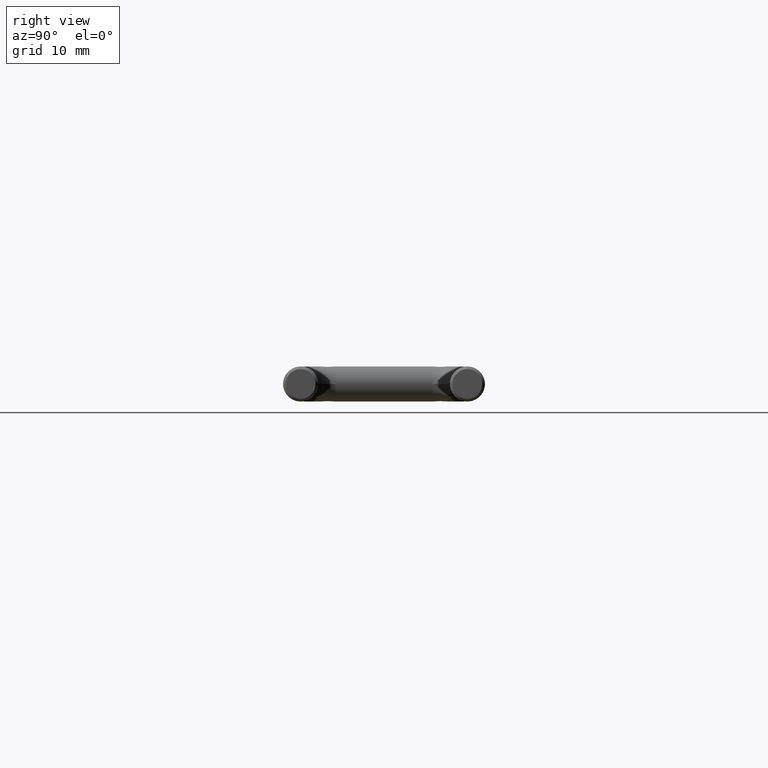
[diagram: clean part render]
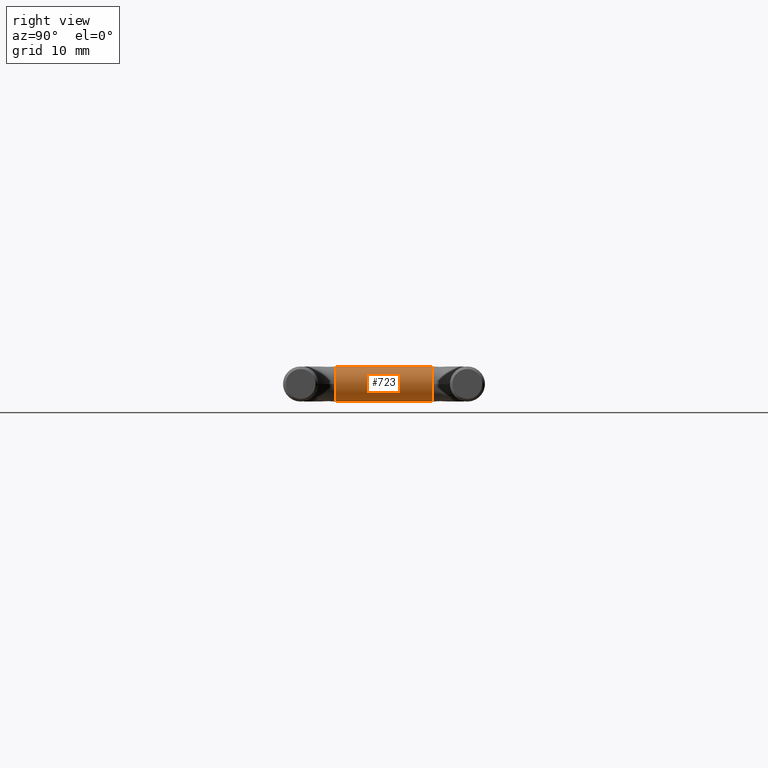
[diagram: same view with one face highlighted and labeled with its STEP entity id]
A machine part, right view. The second image highlights one B-rep face of the part: STEP entity #723.
In plain terms, the highlighted cylindrical surface (edge-blend (fillet) strip) has radius 2 mm, axis along (-0, -1, -0).
Its self-contained STEP definition (entity closure, byte-faithful):
#28 = VERTEX_POINT ( 'NONE', #484 ) ;
#29 = CARTESIAN_POINT ( 'NONE',  ( 0.0000000000000000000, 4.000000000000000000, -2.000000000000004900 ) ) ;
#67 = CARTESIAN_POINT ( 'NONE',  ( 2.449293598294709900E-016, 15.00000000000000000, 2.000000000000000000 ) ) ;
#70 = CARTESIAN_POINT ( 'NONE',  ( 2.449293598294706400E-016, 15.00000000000000000, 2.000000000000000000 ) ) ;
#100 = CARTESIAN_POINT ( 'NONE',  ( 2.449293598294706400E-016, 4.000000000000000000, 1.999999999999995300 ) ) ;
#101 = CIRCLE ( 'NONE', #581, 2.000000000000000000 ) ;
#104 = CARTESIAN_POINT ( 'NONE',  ( 2.000000000198167300, 15.00000000000000000, 1.116728850648756700E-009 ) ) ;
#123 = VERTEX_POINT ( 'NONE', #29 ) ;
#154 = ORIENTED_EDGE ( 'NONE', *, *, #412, .F. ) ;
#159 = CARTESIAN_POINT ( 'NONE',  ( 0.0000000000000000000, 15.00000000000000000, -2.000000000000000000 ) ) ;
#169 = DIRECTION ( 'NONE',  ( 0.0000000000000000000, 0.0000000000000000000, -1.000000000000000000 ) ) ;
#180 = DIRECTION ( 'NONE',  ( -0.0000000000000000000, -1.000000000000000000, -4.336808689942017700E-016 ) ) ;
#212 = ORIENTED_EDGE ( 'NONE', *, *, #629, .F. ) ;
#214 = AXIS2_PLACEMENT_3D ( 'NONE', #456, #744, #169 ) ;
#258 = EDGE_CURVE ( 'NONE', #781, #325, #260, .T. ) ;
#260 = LINE ( 'NONE', #70, #638 ) ;
#301 = AXIS2_PLACEMENT_3D ( 'NONE', #497, #494, #490 ) ;
#303 = EDGE_LOOP ( 'NONE', ( #684, #685, #317, #318, #212, #154 ) ) ;
#310 = EDGE_CURVE ( 'NONE', #781, #662, #786, .T. ) ;
#317 = ORIENTED_EDGE ( 'NONE', *, *, #376, .F. ) ;
#318 = ORIENTED_EDGE ( 'NONE', *, *, #390, .F. ) ;
#320 = DIRECTION ( 'NONE',  ( 1.000000000000000000, 0.0000000000000000000, 0.0000000000000000000 ) ) ;
#322 = DIRECTION ( 'NONE',  ( 0.0000000000000000000, -1.000000000000000000, 0.0000000000000000000 ) ) ;
#324 = CARTESIAN_POINT ( 'NONE',  ( 0.0000000000000000000, 4.000000000000000000, 0.0000000000000000000 ) ) ;
#325 = VERTEX_POINT ( 'NONE', #100 ) ;
#360 = DIRECTION ( 'NONE',  ( 1.000000000000000000, 0.0000000000000000000, 0.0000000000000000000 ) ) ;
#367 = DIRECTION ( 'NONE',  ( 0.0000000000000000000, -1.000000000000000000, 0.0000000000000000000 ) ) ;
#369 = CARTESIAN_POINT ( 'NONE',  ( 0.0000000000000000000, 4.000000000000000000, 0.0000000000000000000 ) ) ;
#376 = EDGE_CURVE ( 'NONE', #438, #325, #623, .T. ) ;
#390 = EDGE_CURVE ( 'NONE', #123, #438, #101, .T. ) ;
#412 = EDGE_CURVE ( 'NONE', #662, #28, #815, .T. ) ;
#421 = FACE_OUTER_BOUND ( 'NONE', #303, .T. ) ;
#432 = CARTESIAN_POINT ( 'NONE',  ( 0.0000000000000000000, 15.00000000000000000, -6.755321789299919800E-041 ) ) ;
#438 = VERTEX_POINT ( 'NONE', #734 ) ;
#441 = DIRECTION ( 'NONE',  ( 0.0000000000000000000, 1.000000000000000000, 4.336808689942017700E-016 ) ) ;
#456 = CARTESIAN_POINT ( 'NONE',  ( 0.0000000000000000000, 15.00000000000000000, 0.0000000000000000000 ) ) ;
#459 = DIRECTION ( 'NONE',  ( 1.776356839400250500E-015, 0.0000000000000000000, -1.000000000000000000 ) ) ;
#484 = CARTESIAN_POINT ( 'NONE',  ( 0.0000000000000000000, 15.00000000000000000, -2.000000000000000000 ) ) ;
#490 = DIRECTION ( 'NONE',  ( 0.0000000000000000000, 0.0000000000000000000, -1.000000000000000000 ) ) ;
#491 = AXIS2_PLACEMENT_3D ( 'NONE', #369, #367, #360 ) ;
#494 = DIRECTION ( 'NONE',  ( 0.0000000000000000000, 1.000000000000000000, 4.336808689942017700E-016 ) ) ;
#497 = CARTESIAN_POINT ( 'NONE',  ( 0.0000000000000000000, 15.00000000000000000, -1.543026697945950100E-040 ) ) ;
#575 = DIRECTION ( 'NONE',  ( -0.0000000000000000000, -1.000000000000000000, -4.336808689942017700E-016 ) ) ;
#581 = AXIS2_PLACEMENT_3D ( 'NONE', #324, #322, #320 ) ;
#585 = CYLINDRICAL_SURFACE ( 'NONE', #214, 2.000000000000000000 ) ;
#623 = CIRCLE ( 'NONE', #491, 2.000000000000000000 ) ;
#629 = EDGE_CURVE ( 'NONE', #28, #123, #696, .T. ) ;
#635 = VECTOR ( 'NONE', #575, 1000.000000000000000 ) ;
#638 = VECTOR ( 'NONE', #180, 1000.000000000000000 ) ;
#662 = VERTEX_POINT ( 'NONE', #104 ) ;
#680 = AXIS2_PLACEMENT_3D ( 'NONE', #432, #441, #459 ) ;
#684 = ORIENTED_EDGE ( 'NONE', *, *, #310, .F. ) ;
#685 = ORIENTED_EDGE ( 'NONE', *, *, #258, .T. ) ;
#696 = LINE ( 'NONE', #159, #635 ) ;
#723 = ADVANCED_FACE ( 'NONE', ( #421 ), #585, .T. ) ;
#734 = CARTESIAN_POINT ( 'NONE',  ( 2.000000000099083000, 4.000000000000000000, 5.583642740705833200E-010 ) ) ;
#744 = DIRECTION ( 'NONE',  ( -0.0000000000000000000, -1.000000000000000000, -4.336808689942017700E-016 ) ) ;
#781 = VERTEX_POINT ( 'NONE', #67 ) ;
#786 = CIRCLE ( 'NONE', #301, 2.000000000000000000 ) ;
#815 = CIRCLE ( 'NONE', #680, 2.000000000000000000 ) ;